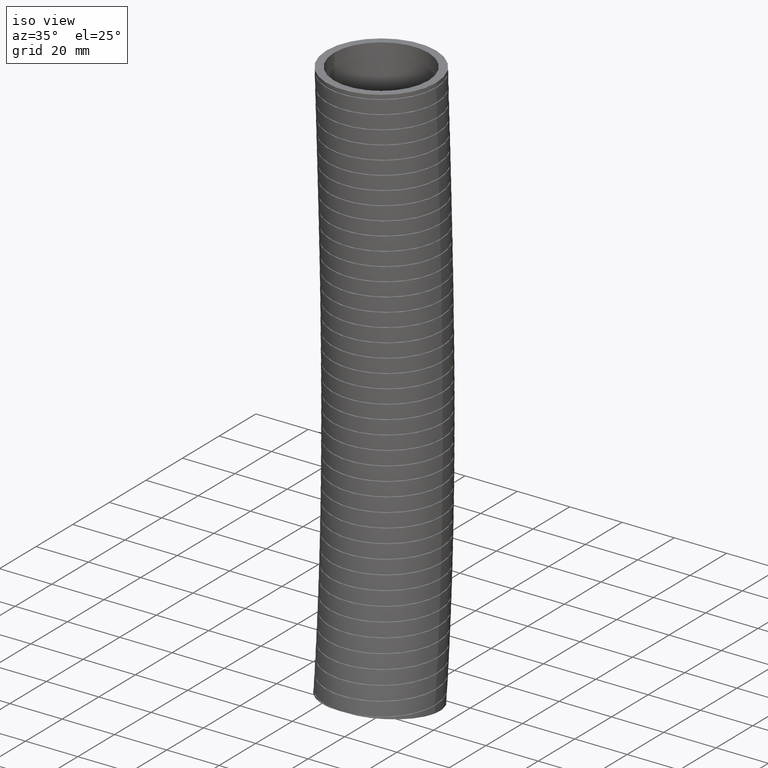
[diagram: clean part render]
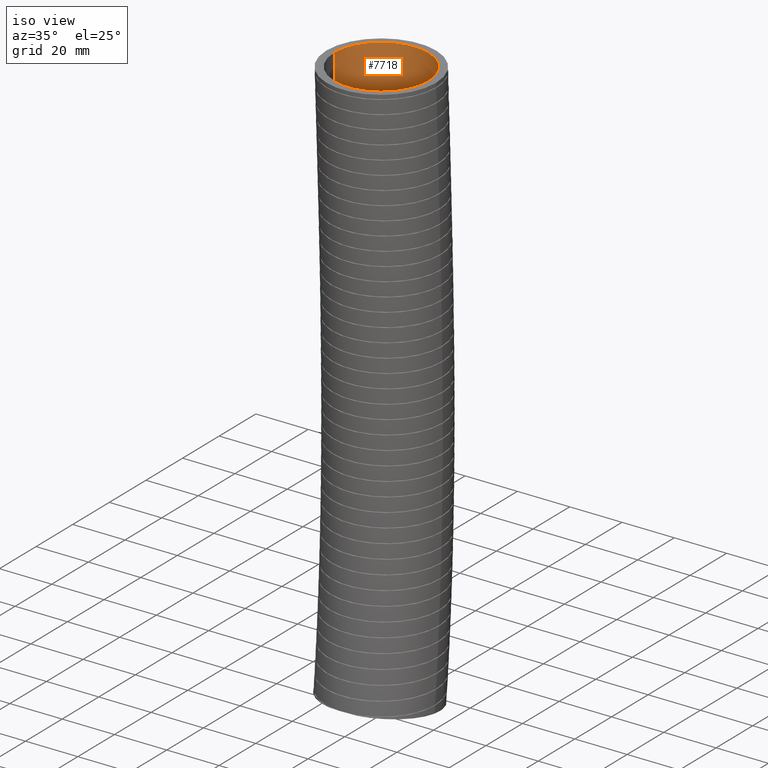
[diagram: same view with one face highlighted and labeled with its STEP entity id]
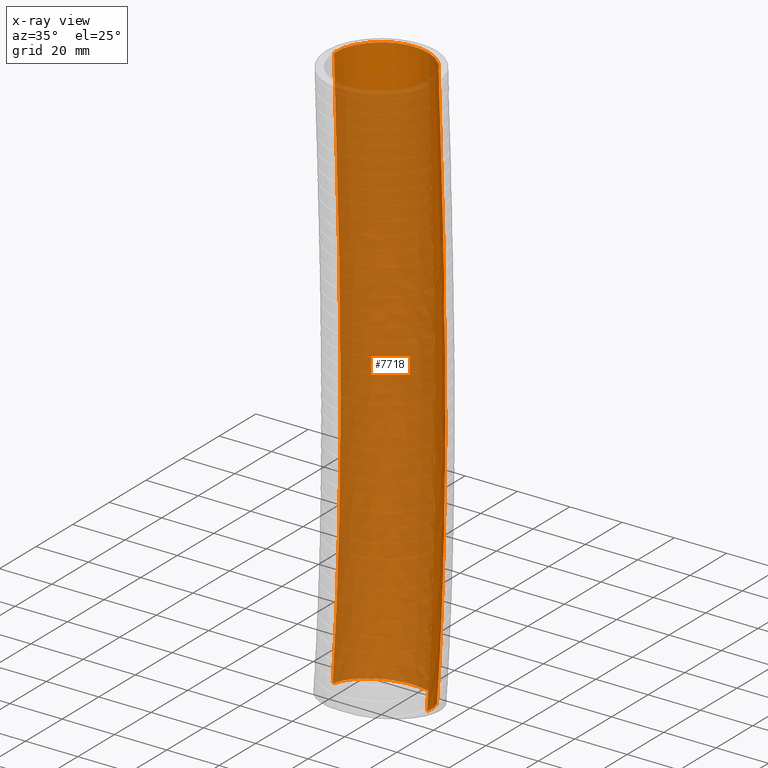
[diagram: x-ray of the same camera — body ghosted, the highlighted face saturated]
A machine part, iso view. The second image highlights one B-rep face of the part: STEP entity #7718.
The next image is the same camera in x-ray: the body ghosted, the highlighted face saturated — about 84% of this face is hidden behind the body in this view.
In plain terms, the highlighted face is a freeform B-spline surface patch.
Its self-contained STEP definition (entity closure, byte-faithful):
#7687 = EDGE_CURVE ( 'NONE', #7712, #7697, #23129, .T. ) ;
#7690 = ORIENTED_EDGE ( 'NONE', *, *, #7687, .F. ) ;
#7692 = ORIENTED_EDGE ( 'NONE', *, *, #7695, .F. ) ;
#7695 = EDGE_CURVE ( 'NONE', #7697, #7698, #14806, .T. ) ;
#7697 = VERTEX_POINT ( 'NONE', #14801 ) ;
#7698 = VERTEX_POINT ( 'NONE', #14800 ) ;
#7700 = EDGE_CURVE ( 'NONE', #7714, #7698, #14799, .T. ) ;
#7702 = ORIENTED_EDGE ( 'NONE', *, *, #7700, .T. ) ;
#7704 = ORIENTED_EDGE ( 'NONE', *, *, #7706, .T. ) ;
#7706 = EDGE_CURVE ( 'NONE', #7712, #7714, #14792, .T. ) ;
#7712 = VERTEX_POINT ( 'NONE', #14786 ) ;
#7714 = VERTEX_POINT ( 'NONE', #14785 ) ;
#7717 = EDGE_LOOP ( 'NONE', ( #7704, #7702, #7692, #7690 ) ) ;
#7718 = ADVANCED_FACE ( 'NONE', ( #14778 ), #14860, .F. ) ;
#13246 = CARTESIAN_POINT ( 'NONE',  ( 0.7099999999999999600, 0.1896261967179030400, -4.274418168908688600 ) ) ;
#13250 = CARTESIAN_POINT ( 'NONE',  ( 0.7099999999999999600, -0.03000000000000005400, -8.570000000000000300 ) ) ;
#13253 = CARTESIAN_POINT ( 'NONE',  ( 0.7099999999999999600, 0.1008743094684736900, -7.127736047350903300 ) ) ;
#13255 = CARTESIAN_POINT ( 'NONE',  ( 0.7099999999999999600, -0.01276117587204244800, -8.380024330009550900 ) ) ;
#14774 = CARTESIAN_POINT ( 'NONE',  ( 0.7099999999999999600, 0.07111375611842187000, -1.602995453545504200 ) ) ;
#14775 = CARTESIAN_POINT ( 'NONE',  ( 0.7099999999999999600, 0.0000000000000000000, 0.0000000000000000000 ) ) ;
#14778 = FACE_OUTER_BOUND ( 'NONE', #7717, .T. ) ;
#14785 = CARTESIAN_POINT ( 'NONE',  ( -0.7099999999999999600, 8.694992273946207000E-017, 0.0000000000000000000 ) ) ;
#14786 = CARTESIAN_POINT ( 'NONE',  ( 0.7099999999999999600, 0.0000000000000000000, 0.0000000000000000000 ) ) ;
#14788 = DIRECTION ( 'NONE',  ( 1.000000000000000000, 0.0000000000000000000, 0.0000000000000000000 ) ) ;
#14789 = DIRECTION ( 'NONE',  ( 0.0000000000000000000, 0.0000000000000000000, 1.000000000000000000 ) ) ;
#14790 = CARTESIAN_POINT ( 'NONE',  ( 0.0000000000000000000, 0.0000000000000000000, 0.0000000000000000000 ) ) ;
#14791 = AXIS2_PLACEMENT_3D ( 'NONE', #14790, #14789, #14788 ) ;
#14792 = CIRCLE ( 'NONE', #14791, 0.7099999999999999600 ) ;
#14793 = CARTESIAN_POINT ( 'NONE',  ( -0.7099999999999999600, -0.02999999999999980100, -8.570000000000000300 ) ) ;
#14794 = CARTESIAN_POINT ( 'NONE',  ( -0.7099999999999999600, -0.01276117587204236200, -8.380024330009550900 ) ) ;
#14795 = CARTESIAN_POINT ( 'NONE',  ( -0.7099999999999999600, 0.1008743094684737700, -7.127736047350903300 ) ) ;
#14796 = CARTESIAN_POINT ( 'NONE',  ( -0.7099999999999999600, 0.1896261967179030900, -4.274418168908688600 ) ) ;
#14797 = CARTESIAN_POINT ( 'NONE',  ( -0.7099999999999999600, 0.07111375611842193900, -1.602995453545504200 ) ) ;
#14798 = CARTESIAN_POINT ( 'NONE',  ( -0.7099999999999999600, 8.694992273946207000E-017, 0.0000000000000000000 ) ) ;
#14799 = B_SPLINE_CURVE_WITH_KNOTS ( 'NONE', 3,
 ( #14798, #14797, #14796, #14795, #14794, #14793 ),
 .UNSPECIFIED., .F., .F.,
 ( 4, 1, 1, 4 ),
 ( 0.0000000000000000000, 0.5600000000000000500, 0.9332507570714188000, 1.000000000000000000 ),
 .UNSPECIFIED. ) ;
#14800 = CARTESIAN_POINT ( 'NONE',  ( -0.7099999999999999600, -0.02999999999999980100, -8.570000000000000300 ) ) ;
#14801 = CARTESIAN_POINT ( 'NONE',  ( 0.7099999999999999600, -0.03000000000000005400, -8.570000000000000300 ) ) ;
#14802 = DIRECTION ( 'NONE',  ( 1.000000000000000000, 0.0000000000000000000, 0.0000000000000000000 ) ) ;
#14803 = DIRECTION ( 'NONE',  ( 0.0000000000000000000, 0.1344202784571988400, 0.9909244112138369000 ) ) ;
#14804 = CARTESIAN_POINT ( 'NONE',  ( 0.0000000000000000000, -0.03000000000000005400, -8.570000000000000300 ) ) ;
#14805 = AXIS2_PLACEMENT_3D ( 'NONE', #14804, #14803, #14802 ) ;
#14806 = CIRCLE ( 'NONE', #14805, 0.7099999999999999600 ) ;
#14823 = CARTESIAN_POINT ( 'NONE',  ( -0.7099999999999997400, 1.513247452032356000, -7.263520773033614700 ) ) ;
#14824 = CARTESIAN_POINT ( 'NONE',  ( -0.7099999999999997400, 1.611599069731995700, -4.307274326926114200 ) ) ;
#14825 = CARTESIAN_POINT ( 'NONE',  ( -0.7099999999999997400, 1.491853624410910400, -1.615317194152448500 ) ) ;
#14826 = CARTESIAN_POINT ( 'NONE',  ( -0.7099999999999997400, 1.419999999999999500, 0.0000000000000000000 ) ) ;
#14827 = CARTESIAN_POINT ( 'NONE',  ( -0.7099999999999999600, -0.02999999999999994300, -8.570000000000000300 ) ) ;
#14828 = CARTESIAN_POINT ( 'NONE',  ( -0.7099999999999999600, -0.01276117587204236200, -8.380024330009550900 ) ) ;
#14829 = CARTESIAN_POINT ( 'NONE',  ( -0.7099999999999999600, 0.1008743094684737700, -7.127736047350903300 ) ) ;
#14830 = CARTESIAN_POINT ( 'NONE',  ( -0.7099999999999999600, 0.1896261967179030900, -4.274418168908688600 ) ) ;
#14831 = CARTESIAN_POINT ( 'NONE',  ( -0.7099999999999999600, 0.07111375611842193900, -1.602995453545504200 ) ) ;
#14832 = CARTESIAN_POINT ( 'NONE',  ( -0.7099999999999999600, 8.694992273946207000E-017, 0.0000000000000000000 ) ) ;
#14833 = CARTESIAN_POINT ( 'NONE',  ( -0.7100000000000000800, -1.437112663923647600, -8.379123204590778000 ) ) ;
#14834 = CARTESIAN_POINT ( 'NONE',  ( -0.7100000000000000800, -1.420566752457283100, -8.196404287317626800 ) ) ;
#14835 = CARTESIAN_POINT ( 'NONE',  ( -0.7100000000000000800, -1.311498833095409600, -6.991951321668193700 ) ) ;
#14836 = CARTESIAN_POINT ( 'NONE',  ( -0.7099999999999997400, -1.232346676296189200, -4.241562010891264800 ) ) ;
#14837 = CARTESIAN_POINT ( 'NONE',  ( -0.7099999999999997400, -1.349626112174066500, -1.590673712938559100 ) ) ;
#14838 = CARTESIAN_POINT ( 'NONE',  ( -0.7100000000000000800, -1.419999999999999500, 0.0000000000000000000 ) ) ;
#14839 = CARTESIAN_POINT ( 'NONE',  ( 0.7099999999999997400, -1.437112663923647600, -8.379123204590778000 ) ) ;
#14840 = CARTESIAN_POINT ( 'NONE',  ( 0.7099999999999997400, -1.420566752457283100, -8.196404287317626800 ) ) ;
#14841 = CARTESIAN_POINT ( 'NONE',  ( 0.7099999999999997400, -1.311498833095409600, -6.991951321668193700 ) ) ;
#14842 = CARTESIAN_POINT ( 'NONE',  ( 0.7099999999999997400, -1.232346676296189200, -4.241562010891264800 ) ) ;
#14843 = CARTESIAN_POINT ( 'NONE',  ( 0.7099999999999997400, -1.349626112174066500, -1.590673712938559100 ) ) ;
#14844 = CARTESIAN_POINT ( 'NONE',  ( 0.7099999999999997400, -1.419999999999999500, 0.0000000000000000000 ) ) ;
#14845 = CARTESIAN_POINT ( 'NONE',  ( 0.7099999999999999600, -0.03000000000000003000, -8.570000000000000300 ) ) ;
#14846 = CARTESIAN_POINT ( 'NONE',  ( 0.7099999999999999600, -0.01276117587204244800, -8.380024330009550900 ) ) ;
#14847 = CARTESIAN_POINT ( 'NONE',  ( 0.7099999999999999600, 0.1008743094684736900, -7.127736047350903300 ) ) ;
#14848 = CARTESIAN_POINT ( 'NONE',  ( 0.7099999999999999600, 0.1896261967179030400, -4.274418168908688600 ) ) ;
#14849 = CARTESIAN_POINT ( 'NONE',  ( 0.7099999999999999600, 0.07111375611842187000, -1.602995453545504200 ) ) ;
#14850 = CARTESIAN_POINT ( 'NONE',  ( 0.7099999999999999600, 0.0000000000000000000, 0.0000000000000000000 ) ) ;
#14860 =( BOUNDED_SURFACE ( )  B_SPLINE_SURFACE ( 3, 3, ( 
 ( #14850, #14849, #14848, #14847, #14846, #14845 ),
 ( #14844, #14843, #14842, #14841, #14840, #14839 ),
 ( #14838, #14837, #14836, #14835, #14834, #14833 ),
 ( #14832, #14831, #14830, #14829, #14828, #14827 ),
 ( #14826, #14825, #14824, #14823, #14885, #14884 ),
 ( #14883, #14882, #14881, #14880, #14879, #14878 ),
 ( #14877, #14876, #14875, #14874, #14873, #14872 ) ),
 .UNSPECIFIED., .F., .F., .F. ) 
 B_SPLINE_SURFACE_WITH_KNOTS ( ( 4, 3, 4 ),
 ( 4, 1, 1, 4 ),
 ( 0.0000000000000000000, 0.5000000000000000000, 1.000000000000000000 ),
 ( 0.0000000000000000000, 0.5600000000000000500, 0.9332507570714188000, 1.000000000000000000 ),
 .UNSPECIFIED. ) 
 GEOMETRIC_REPRESENTATION_ITEM ( )  RATIONAL_B_SPLINE_SURFACE ( (
 ( 1.000000000000000000, 1.000000000000000000, 1.000000000000000000, 1.000000000000000000, 1.000000000000000000, 1.000000000000000000),
 ( 0.3333333333333333100, 0.3333333333333333100, 0.3333333333333333100, 0.3333333333333333100, 0.3333333333333333100, 0.3333333333333333100),
 ( 0.3333333333333333100, 0.3333333333333333100, 0.3333333333333333100, 0.3333333333333333100, 0.3333333333333333100, 0.3333333333333333100),
 ( 1.000000000000000000, 1.000000000000000000, 1.000000000000000000, 1.000000000000000000, 1.000000000000000000, 1.000000000000000000),
 ( 0.3333333333333333100, 0.3333333333333333100, 0.3333333333333333100, 0.3333333333333333100, 0.3333333333333333100, 0.3333333333333333100),
 ( 0.3333333333333333100, 0.3333333333333333100, 0.3333333333333333100, 0.3333333333333333100, 0.3333333333333333100, 0.3333333333333333100),
 ( 1.000000000000000000, 1.000000000000000000, 1.000000000000000000, 1.000000000000000000, 1.000000000000000000, 1.000000000000000000) ) ) 
 REPRESENTATION_ITEM ( '' )  SURFACE ( )  );
#14872 = CARTESIAN_POINT ( 'NONE',  ( 0.7099999999999999600, -0.03000000000000003000, -8.570000000000000300 ) ) ;
#14873 = CARTESIAN_POINT ( 'NONE',  ( 0.7099999999999999600, -0.01276117587204244800, -8.380024330009550900 ) ) ;
#14874 = CARTESIAN_POINT ( 'NONE',  ( 0.7099999999999999600, 0.1008743094684736900, -7.127736047350903300 ) ) ;
#14875 = CARTESIAN_POINT ( 'NONE',  ( 0.7099999999999999600, 0.1896261967179030400, -4.274418168908688600 ) ) ;
#14876 = CARTESIAN_POINT ( 'NONE',  ( 0.7099999999999999600, 0.07111375611842187000, -1.602995453545504200 ) ) ;
#14877 = CARTESIAN_POINT ( 'NONE',  ( 0.7099999999999999600, 0.0000000000000000000, 0.0000000000000000000 ) ) ;
#14878 = CARTESIAN_POINT ( 'NONE',  ( 0.7099999999999997400, 1.377112663923647500, -8.760876795409222600 ) ) ;
#14879 = CARTESIAN_POINT ( 'NONE',  ( 0.7099999999999997400, 1.395044400713197700, -8.563644372701469700 ) ) ;
#14880 = CARTESIAN_POINT ( 'NONE',  ( 0.7099999999999997400, 1.513247452032356000, -7.263520773033614700 ) ) ;
#14881 = CARTESIAN_POINT ( 'NONE',  ( 0.7099999999999997400, 1.611599069731995700, -4.307274326926114200 ) ) ;
#14882 = CARTESIAN_POINT ( 'NONE',  ( 0.7099999999999997400, 1.491853624410910400, -1.615317194152448500 ) ) ;
#14883 = CARTESIAN_POINT ( 'NONE',  ( 0.7099999999999997400, 1.419999999999999500, 0.0000000000000000000 ) ) ;
#14884 = CARTESIAN_POINT ( 'NONE',  ( -0.7099999999999997400, 1.377112663923647500, -8.760876795409222600 ) ) ;
#14885 = CARTESIAN_POINT ( 'NONE',  ( -0.7099999999999997400, 1.395044400713197700, -8.563644372701469700 ) ) ;
#23129 = B_SPLINE_CURVE_WITH_KNOTS ( 'NONE', 3,
 ( #14775, #14774, #13246, #13253, #13255, #13250 ),
 .UNSPECIFIED., .F., .F.,
 ( 4, 1, 1, 4 ),
 ( 0.0000000000000000000, 0.5600000000000000500, 0.9332507570714188000, 1.000000000000000000 ),
 .UNSPECIFIED. ) ;